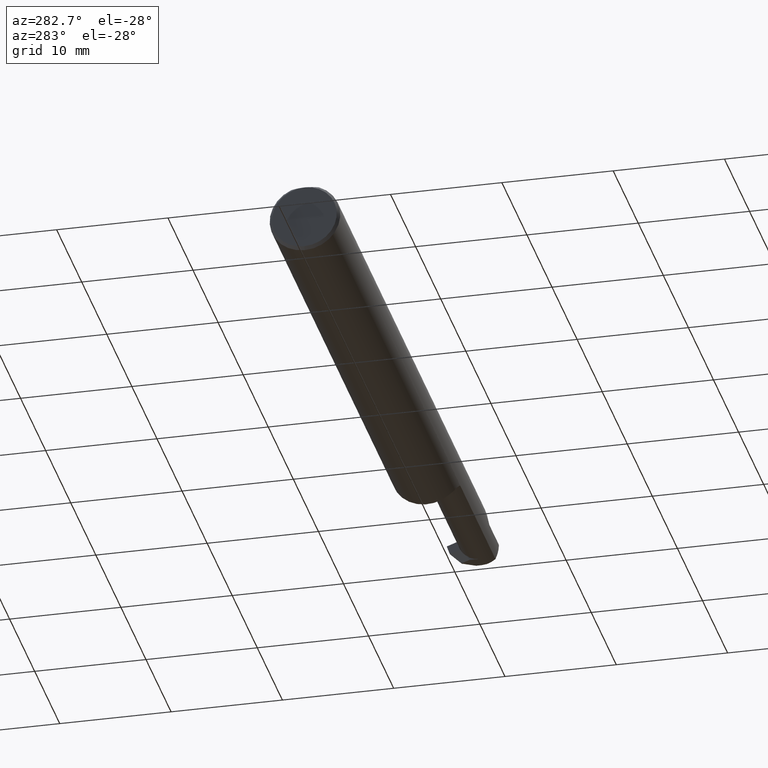
[diagram: clean part render]
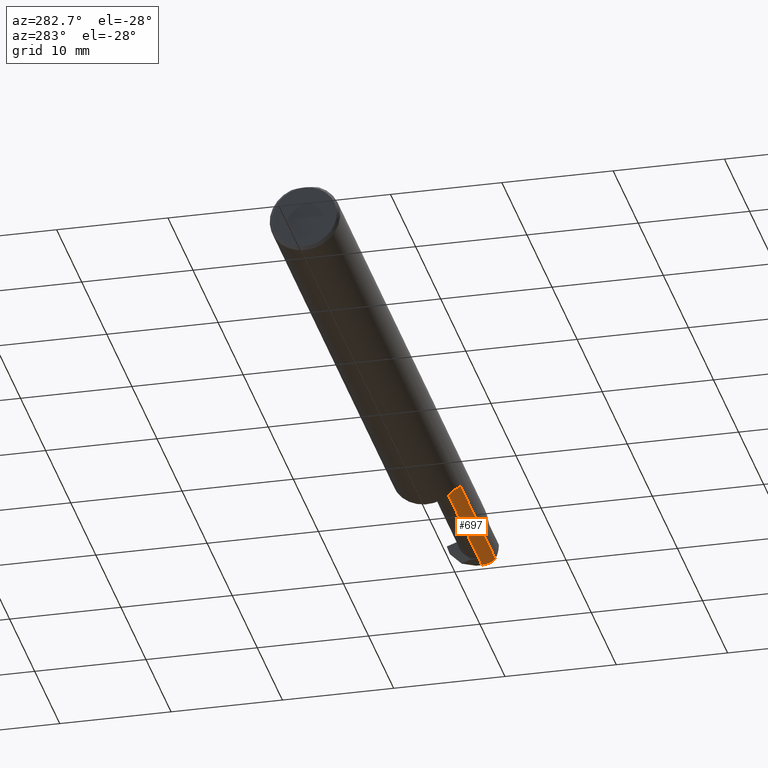
[diagram: same view with one face highlighted and labeled with its STEP entity id]
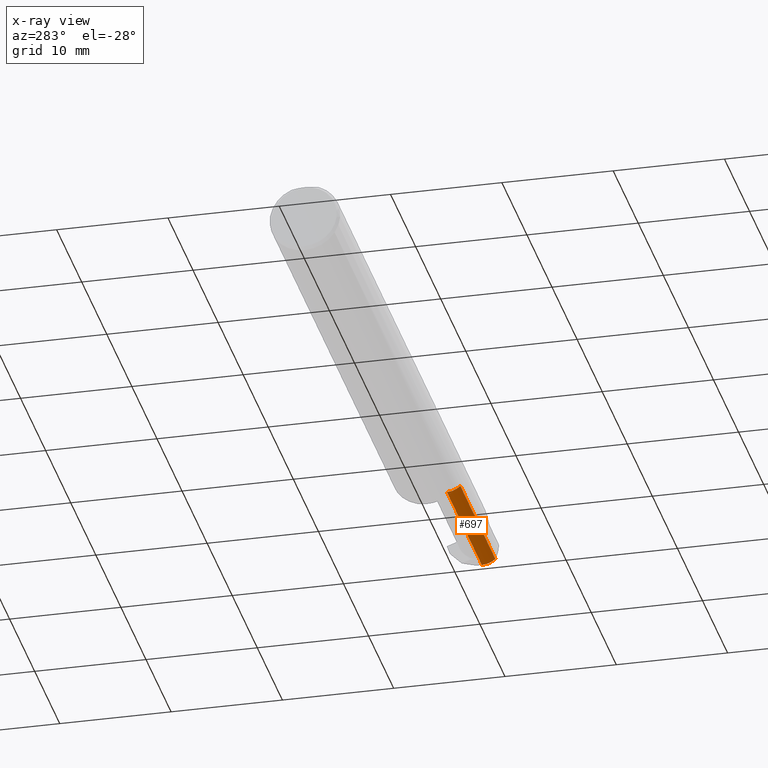
[diagram: x-ray of the same camera — body ghosted, the highlighted face saturated]
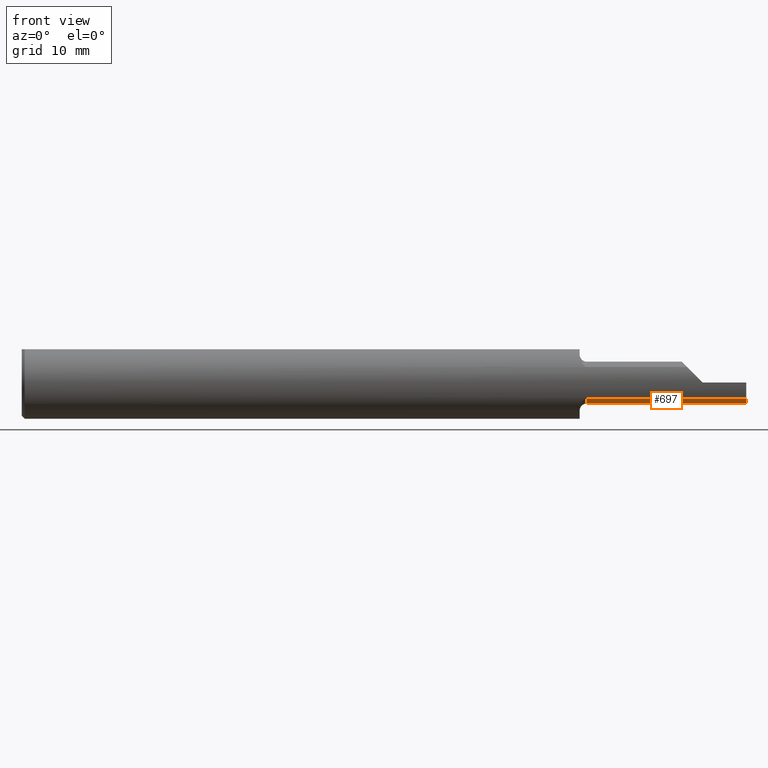
[diagram: same view with one face highlighted and labeled with its STEP entity id]
A machine part, auxiliary view. The second image highlights one B-rep face of the part: STEP entity #697.
The next image is the same camera in x-ray: the body ghosted, the highlighted face saturated — about 0% of this face is hidden behind the body in this view.
A second angle (front view) of the same face is appended — the face is thin or edge-on in the first view.
In plain terms, the highlighted cylindrical surface (edge-blend (fillet) strip) has radius 1.8288 mm, axis along (-1, -0, -0).
Its self-contained STEP definition (entity closure, byte-faithful):
#34 = DIRECTION ( 'NONE',  ( 1.000000000000000000, 0.000000000000000000, 0.000000000000000000 ) ) ;
#41 = CARTESIAN_POINT ( 'NONE',  ( 2.500000000000000000, -0.1126372012336159106, -0.05385520771715490013 ) ) ;
#67 = EDGE_CURVE ( 'NONE', #78, #640, #136, .T. ) ;
#78 = VERTEX_POINT ( 'NONE', #41 ) ;
#79 = AXIS2_PLACEMENT_3D ( 'NONE', #187, #809, #182 ) ;
#94 = EDGE_CURVE ( 'NONE', #594, #696, #799, .T. ) ;
#136 = CIRCLE ( 'NONE', #356, 0.07200000000000009170 ) ;
#151 = CIRCLE ( 'NONE', #530, 0.07200000000000005007 ) ;
#182 = DIRECTION ( 'NONE',  ( 0.000000000000000000, 0.000000000000000000, 1.000000000000000000 ) ) ;
#187 = CARTESIAN_POINT ( 'NONE',  ( 1.925000000000000044, -0.06485000000000003262, 0.000000000000000000 ) ) ;
#208 = VECTOR ( 'NONE', #614, 39.37007874015748143 ) ;
#214 = EDGE_CURVE ( 'NONE', #640, #594, #733, .T. ) ;
#253 = CARTESIAN_POINT ( 'NONE',  ( 2.453554108141144052, -0.06485000000000003262, -0.07200000000000009170 ) ) ;
#258 = CARTESIAN_POINT ( 'NONE',  ( 2.500000000000000000, -0.06485000000000015752, -0.07200000000000013334 ) ) ;
#259 = EDGE_CURVE ( 'NONE', #696, #849, #151, .T. ) ;
#261 = FACE_OUTER_BOUND ( 'NONE', #631, .T. ) ;
#284 = VECTOR ( 'NONE', #584, 39.37007874015748143 ) ;
#312 = EDGE_CURVE ( 'NONE', #78, #849, #393, .T. ) ;
#337 = DIRECTION ( 'NONE',  ( 0.000000000000000000, 0.000000000000000000, 1.000000000000000000 ) ) ;
#356 = AXIS2_PLACEMENT_3D ( 'NONE', #440, #34, #445 ) ;
#388 = CARTESIAN_POINT ( 'NONE',  ( 1.949999999999999956, -0.06485000000000003262, -0.07200000000000005007 ) ) ;
#393 = LINE ( 'NONE', #465, #677 ) ;
#402 = CARTESIAN_POINT ( 'NONE',  ( 1.949999999999999956, -0.06485000000000003262, 0.000000000000000000 ) ) ;
#440 = CARTESIAN_POINT ( 'NONE',  ( 2.500000000000000000, -0.06485000000000003262, 0.000000000000000000 ) ) ;
#445 = DIRECTION ( 'NONE',  ( 0.000000000000000000, 0.000000000000000000, 1.000000000000000000 ) ) ;
#461 = CYLINDRICAL_SURFACE ( 'NONE', #79, 0.07200000000000005007 ) ;
#465 = CARTESIAN_POINT ( 'NONE',  ( 2.197229416990599926, -0.1126372012336159523, -0.05385520771715492788 ) ) ;
#521 = ORIENTED_EDGE ( 'NONE', *, *, #259, .F. ) ;
#530 = AXIS2_PLACEMENT_3D ( 'NONE', #402, #822, #337 ) ;
#548 = CARTESIAN_POINT ( 'NONE',  ( 1.949999999999999956, -0.1126372012336159384, -0.05385520771715492788 ) ) ;
#579 = ORIENTED_EDGE ( 'NONE', *, *, #67, .F. ) ;
#584 = DIRECTION ( 'NONE',  ( -1.000000000000000000, -0.000000000000000000, -0.000000000000000000 ) ) ;
#594 = VERTEX_POINT ( 'NONE', #253 ) ;
#614 = DIRECTION ( 'NONE',  ( -1.000000000000000000, -0.000000000000000000, -0.000000000000000000 ) ) ;
#620 = DIRECTION ( 'NONE',  ( -1.000000000000000000, -0.000000000000000000, -0.000000000000000000 ) ) ;
#631 = EDGE_LOOP ( 'NONE', ( #806, #854, #579, #889, #521 ) ) ;
#640 = VERTEX_POINT ( 'NONE', #258 ) ;
#677 = VECTOR ( 'NONE', #620, 39.37007874015748143 ) ;
#696 = VERTEX_POINT ( 'NONE', #388 ) ;
#697 = ADVANCED_FACE ( 'NONE', ( #261 ), #461, .T. ) ;
#733 = LINE ( 'NONE', #743, #208 ) ;
#743 = CARTESIAN_POINT ( 'NONE',  ( 2.644458833981199852, -0.06485000000000015752, -0.07200000000000013334 ) ) ;
#799 = LINE ( 'NONE', #876, #284 ) ;
#806 = ORIENTED_EDGE ( 'NONE', *, *, #94, .F. ) ;
#809 = DIRECTION ( 'NONE',  ( -1.000000000000000000, -0.000000000000000000, -0.000000000000000000 ) ) ;
#822 = DIRECTION ( 'NONE',  ( -1.000000000000000000, -0.000000000000000000, -0.000000000000000000 ) ) ;
#849 = VERTEX_POINT ( 'NONE', #548 ) ;
#854 = ORIENTED_EDGE ( 'NONE', *, *, #214, .F. ) ;
#876 = CARTESIAN_POINT ( 'NONE',  ( 1.925000000000000044, -0.06485000000000003262, -0.07200000000000005007 ) ) ;
#889 = ORIENTED_EDGE ( 'NONE', *, *, #312, .T. ) ;